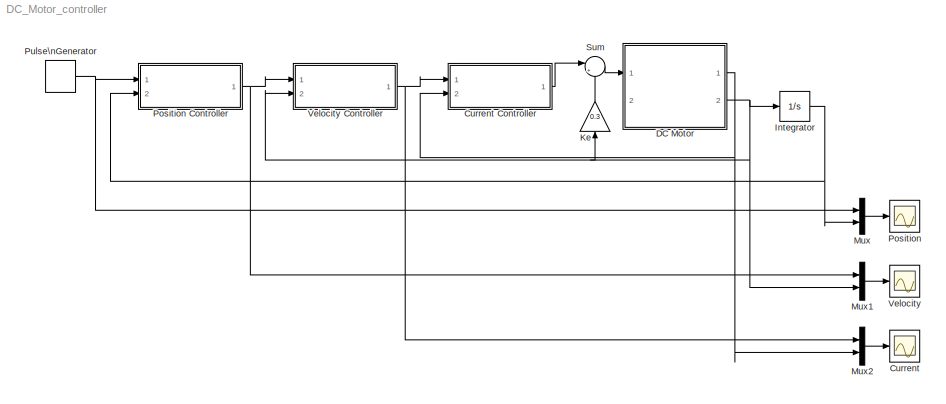
MODEL DC_Motor_controller
KIND model
BLOCK [Scope] Current
  DataFormat = StructureWithTime
  Floating = off
  NumInputPorts = 1
  Ports = [1]
  SID = 115
  SampleTime = 0
  SaveName = ScopeData2
  TimeRange = 10
  YMax = 20
  YMin = -20
  ZoomMode = yonly
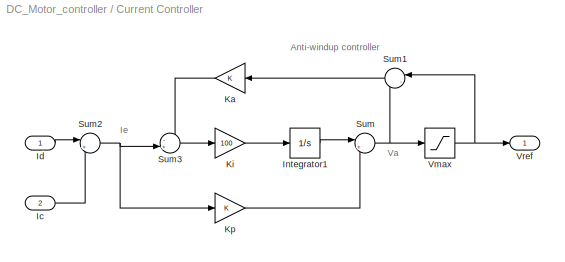
BLOCK [SubSystem] Current Controller
  FunctionWithSeparateData = off
  MaskHideContents = off
  MinAlgLoopOccurrences = off
  Opaque = off
  Ports = [2, 1]
  PropExecContextOutsideSubsystem = off
  RTWSystemCode = Auto
  RequestExecContextInheritance = off
  SID = 47
BLOCK [Inport] Current Controller/Ic
  IconDisplay = Port number
  OutDataType = fixdt(1, 16)
  OutScaling = 2^0
  Port = 2
  SID = 96
BLOCK [Inport] Current Controller/Id
  IconDisplay = Port number
  OutDataType = fixdt(1, 16)
  OutScaling = 2^0
  SID = 48
BLOCK [Integrator] Current Controller/Integrator1
  Ports = [1, 1]
  SID = 50
BLOCK [Gain] Current Controller/Ka
  OutDataType = fixdt(1, 16)
  OutDataTypeMode = Inherit via internal rule
  OutDataTypeStr = Inherit: Inherit via internal rule
  OutScaling = 2^0
  ParamDataTypeStr = Inherit: Inherit via internal rule
  ParameterDataType = fixdt(1, 16)
  ParameterDataTypeMode = Inherit via internal rule
  ParameterScaling = 2^0
  SID = 51
  SaturateOnIntegerOverflow = off
BLOCK [Gain] Current Controller/Ki
  Gain = 100
  OutDataType = fixdt(1, 16)
  OutDataTypeMode = Inherit via internal rule
  OutDataTypeStr = Inherit: Inherit via internal rule
  OutScaling = 2^0
  ParamDataTypeStr = Inherit: Inherit via internal rule
  ParameterDataType = fixdt(1, 16)
  ParameterDataTypeMode = Inherit via internal rule
  ParameterScaling = 2^0
  SID = 52
  SaturateOnIntegerOverflow = off
BLOCK [Gain] Current Controller/Kp
  OutDataType = fixdt(1, 16)
  OutDataTypeMode = Inherit via internal rule
  OutDataTypeStr = Inherit: Inherit via internal rule
  OutScaling = 2^0
  ParamDataTypeStr = Inherit: Inherit via internal rule
  ParameterDataType = fixdt(1, 16)
  ParameterDataTypeMode = Inherit via internal rule
  ParameterScaling = 2^0
  SID = 53
  SaturateOnIntegerOverflow = off
BLOCK [Sum] Current Controller/Sum
  IconShape = round
  InputSameDT = off
  Inputs = |++
  OutDataType = fixdt(1, 16)
  OutDataTypeMode = Inherit via internal rule
  OutDataTypeStr = Inherit: Inherit via internal rule
  OutScaling = 2^0
  Ports = [2, 1]
  SID = 55
  SaturateOnIntegerOverflow = off
BLOCK [Sum] Current Controller/Sum1
  IconShape = round
  InputSameDT = off
  Inputs = |-+
  OutDataType = fixdt(1, 16)
  OutDataTypeMode = Inherit via internal rule
  OutDataTypeStr = Inherit: Inherit via internal rule
  OutScaling = 2^0
  Ports = [2, 1]
  SID = 56
  SaturateOnIntegerOverflow = off
BLOCK [Sum] Current Controller/Sum2
  IconShape = round
  InputSameDT = off
  Inputs = |+-
  OutDataType = fixdt(1, 16)
  OutDataTypeMode = Inherit via internal rule
  OutDataTypeStr = Inherit: Inherit via internal rule
  OutScaling = 2^0
  Ports = [2, 1]
  SID = 97
  SaturateOnIntegerOverflow = off
BLOCK [Sum] Current Controller/Sum3
  IconShape = round
  InputSameDT = off
  Inputs = -+|
  OutDataType = fixdt(1, 16)
  OutDataTypeMode = Inherit via internal rule
  OutDataTypeStr = Inherit: Inherit via internal rule
  OutScaling = 2^0
  Ports = [2, 1]
  SID = 57
  SaturateOnIntegerOverflow = off
BLOCK [Saturate] Current Controller/Vmax
  LowerLimit = -20
  OutDataType = fixdt(1, 16)
  OutScaling = 2^0
  Ports = [1, 1]
  SID = 54
  UpperLimit = 20
BLOCK [Outport] Current Controller/Vref
  IconDisplay = Port number
  OutDataType = fixdt(1, 16)
  OutScaling = 2^0
  SID = 58
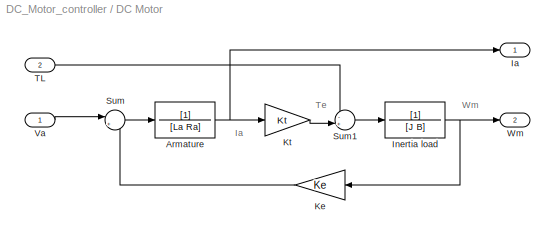
BLOCK [SubSystem] DC Motor
  FunctionWithSeparateData = off
  MaskHideContents = off
  MinAlgLoopOccurrences = off
  Opaque = off
  Ports = [2, 2]
  PropExecContextOutsideSubsystem = off
  RTWSystemCode = Auto
  RequestExecContextInheritance = off
  SID = 71
BLOCK [TransferFcn] DC Motor/Armature
  Denominator = [La Ra]
  SID = 79
BLOCK [Outport] DC Motor/Ia
  IconDisplay = Port number
  OutDataType = fixdt(1, 16)
  OutScaling = 2^0
  SID = 81
BLOCK [TransferFcn] DC Motor/Inertia load
  Denominator = [J B]
  SID = 76
BLOCK [Gain] DC Motor/Ke
  Gain = Ke
  OutDataType = fixdt(1, 16)
  OutDataTypeMode = Inherit via internal rule
  OutDataTypeStr = Inherit: Inherit via internal rule
  OutScaling = 2^0
  ParamDataTypeStr = Inherit: Inherit via internal rule
  ParameterDataType = fixdt(1, 16)
  ParameterDataTypeMode = Inherit via internal rule
  ParameterScaling = 2^0
  SID = 74
  SaturateOnIntegerOverflow = off
BLOCK [Gain] DC Motor/Kt
  Gain = Kt
  OutDataType = fixdt(1, 16)
  OutDataTypeMode = Inherit via internal rule
  OutDataTypeStr = Inherit: Inherit via internal rule
  OutScaling = 2^0
  ParamDataTypeStr = Inherit: Inherit via internal rule
  ParameterDataType = fixdt(1, 16)
  ParameterDataTypeMode = Inherit via internal rule
  ParameterScaling = 2^0
  SID = 75
  SaturateOnIntegerOverflow = off
BLOCK [Sum] DC Motor/Sum
  IconShape = round
  InputSameDT = off
  Inputs = |+-
  OutDataType = fixdt(1, 16)
  OutDataTypeMode = Inherit via internal rule
  OutDataTypeStr = Inherit: Inherit via internal rule
  OutScaling = 2^0
  Ports = [2, 1]
  SID = 77
  SaturateOnIntegerOverflow = off
BLOCK [Sum] DC Motor/Sum1
  IconShape = round
  InputSameDT = off
  Inputs = -+|
  OutDataType = fixdt(1, 16)
  OutDataTypeMode = Inherit via internal rule
  OutDataTypeStr = Inherit: Inherit via internal rule
  OutScaling = 2^0
  Ports = [2, 1]
  SID = 78
  SaturateOnIntegerOverflow = off
BLOCK [Inport] DC Motor/TL
  IconDisplay = Port number
  OutDataType = fixdt(1, 16)
  OutScaling = 2^0
  Port = 2
  SID = 73
BLOCK [Inport] DC Motor/Va
  IconDisplay = Port number
  OutDataType = fixdt(1, 16)
  OutScaling = 2^0
  SID = 72
BLOCK [Outport] DC Motor/Wm
  IconDisplay = Port number
  OutDataType = fixdt(1, 16)
  OutScaling = 2^0
  Port = 2
  SID = 102
BLOCK [Integrator] Integrator
  Ports = [1, 1]
  SID = 110
BLOCK [Gain] Ke
  Gain = 0.3
  OutDataType = fixdt(1, 16)
  OutDataTypeMode = Inherit via internal rule
  OutDataTypeStr = Inherit: Inherit via internal rule
  OutScaling = 2^0
  ParamDataTypeStr = Inherit: Inherit via internal rule
  ParameterDataType = fixdt(1, 16)
  ParameterDataTypeMode = Inherit via internal rule
  ParameterScaling = 2^0
  SID = 123
  SaturateOnIntegerOverflow = off
BLOCK [Mux] Mux
  DisplayOption = bar
  Inputs = 2
  Ports = [2, 1]
  SID = 24
BLOCK [Mux] Mux1
  DisplayOption = bar
  Inputs = 2
  Ports = [2, 1]
  SID = 112
BLOCK [Mux] Mux2
  DisplayOption = bar
  Inputs = 2
  Ports = [2, 1]
  SID = 114
BLOCK [Scope] Position
  DataFormat = StructureWithTime
  Floating = off
  NumInputPorts = 1
  Ports = [1]
  SID = 6
  SampleTime = 0
  TimeRange = 10
  YMax = 150
  YMin = 0
  ZoomMode = yonly
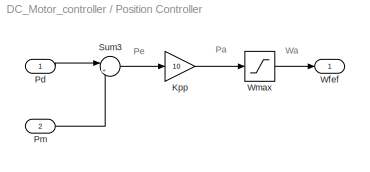
BLOCK [SubSystem] Position Controller
  FunctionWithSeparateData = off
  MaskHideContents = off
  MinAlgLoopOccurrences = off
  Opaque = off
  Ports = [2, 1]
  PropExecContextOutsideSubsystem = off
  RTWSystemCode = Auto
  RequestExecContextInheritance = off
  SID = 103
BLOCK [Gain] Position Controller/Kpp
  Gain = 10
  OutDataType = fixdt(1, 16)
  OutDataTypeMode = Inherit via internal rule
  OutDataTypeStr = Inherit: Inherit via internal rule
  OutScaling = 2^0
  ParamDataTypeStr = Inherit: Inherit via internal rule
  ParameterDataType = fixdt(1, 16)
  ParameterDataTypeMode = Inherit via internal rule
  ParameterScaling = 2^0
  SID = 107
  SaturateOnIntegerOverflow = off
BLOCK [Inport] Position Controller/Pd
  IconDisplay = Port number
  OutDataType = fixdt(1, 16)
  OutScaling = 2^0
  SID = 104
BLOCK [Inport] Position Controller/Pm
  IconDisplay = Port number
  OutDataType = fixdt(1, 16)
  OutScaling = 2^0
  Port = 2
  SID = 106
BLOCK [Sum] Position Controller/Sum3
  IconShape = round
  InputSameDT = off
  Inputs = |+-
  OutDataType = fixdt(1, 16)
  OutDataTypeMode = Inherit via internal rule
  OutDataTypeStr = Inherit: Inherit via internal rule
  OutScaling = 2^0
  Ports = [2, 1]
  SID = 108
  SaturateOnIntegerOverflow = off
BLOCK [Outport] Position Controller/Wfef
  IconDisplay = Port number
  OutDataType = fixdt(1, 16)
  OutScaling = 2^0
  SID = 105
BLOCK [Saturate] Position Controller/Wmax
  LowerLimit = -100
  OutDataType = fixdt(1, 16)
  OutScaling = 2^0
  Ports = [1, 1]
  SID = 109
  UpperLimit = 100
BLOCK [DiscretePulseGenerator] Pulse\nGenerator
  Amplitude = 100
  Period = 10
  PhaseDelay = 1
  Ports = [0, 1]
  PulseType = Time based
  PulseWidth = 50
  SID = 26
  SampleTime = 1
BLOCK [Sum] Sum
  IconShape = round
  InputSameDT = off
  Inputs = |++
  OutDataType = fixdt(1, 16)
  OutDataTypeMode = Inherit via internal rule
  OutDataTypeStr = Inherit: Inherit via internal rule
  OutScaling = 2^0
  Ports = [2, 1]
  SID = 122
  SaturateOnIntegerOverflow = off
BLOCK [Scope] Velocity
  DataFormat = StructureWithTime
  Floating = off
  NumInputPorts = 1
  Ports = [1]
  SID = 113
  SampleTime = 0
  SaveName = ScopeData1
  TimeRange = 10
  YMax = 100
  YMin = -100
  ZoomMode = yonly
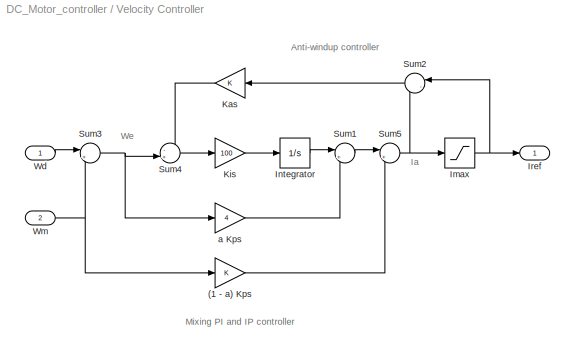
BLOCK [SubSystem] Velocity Controller
  FunctionWithSeparateData = off
  MaskHideContents = off
  MinAlgLoopOccurrences = off
  Opaque = off
  Ports = [2, 1]
  PropExecContextOutsideSubsystem = off
  RTWSystemCode = Auto
  RequestExecContextInheritance = off
  SID = 82
BLOCK [Gain] Velocity Controller/(1 - a) Kps
  OutDataType = fixdt(1, 16)
  OutDataTypeMode = Inherit via internal rule
  OutDataTypeStr = Inherit: Inherit via internal rule
  OutScaling = 2^0
  ParamDataTypeStr = Inherit: Inherit via internal rule
  ParameterDataType = fixdt(1, 16)
  ParameterDataTypeMode = Inherit via internal rule
  ParameterScaling = 2^0
  SID = 95
  SaturateOnIntegerOverflow = off
BLOCK [Saturate] Velocity Controller/Imax
  LowerLimit = -20
  OutDataType = fixdt(1, 16)
  OutScaling = 2^0
  Ports = [1, 1]
  SID = 101
  UpperLimit = 20
BLOCK [Integrator] Velocity Controller/Integrator
  Ports = [1, 1]
  SID = 84
BLOCK [Outport] Velocity Controller/Iref
  IconDisplay = Port number
  OutDataType = fixdt(1, 16)
  OutScaling = 2^0
  SID = 92
BLOCK [Gain] Velocity Controller/Kas
  OutDataType = fixdt(1, 16)
  OutDataTypeMode = Inherit via internal rule
  OutDataTypeStr = Inherit: Inherit via internal rule
  OutScaling = 2^0
  ParamDataTypeStr = Inherit: Inherit via internal rule
  ParameterDataType = fixdt(1, 16)
  ParameterDataTypeMode = Inherit via internal rule
  ParameterScaling = 2^0
  SID = 116
  SaturateOnIntegerOverflow = off
BLOCK [Gain] Velocity Controller/Kis
  Gain = 100
  OutDataType = fixdt(1, 16)
  OutDataTypeMode = Inherit via internal rule
  OutDataTypeStr = Inherit: Inherit via internal rule
  OutScaling = 2^0
  ParamDataTypeStr = Inherit: Inherit via internal rule
  ParameterDataType = fixdt(1, 16)
  ParameterDataTypeMode = Inherit via internal rule
  ParameterScaling = 2^0
  SID = 86
  SaturateOnIntegerOverflow = off
BLOCK [Sum] Velocity Controller/Sum1
  IconShape = round
  InputSameDT = off
  Inputs = |++
  OutDataType = fixdt(1, 16)
  OutDataTypeMode = Inherit via internal rule
  OutDataTypeStr = Inherit: Inherit via internal rule
  OutScaling = 2^0
  Ports = [2, 1]
  SID = 120
  SaturateOnIntegerOverflow = off
BLOCK [Sum] Velocity Controller/Sum2
  IconShape = round
  InputSameDT = off
  Inputs = |-+
  OutDataType = fixdt(1, 16)
  OutDataTypeMode = Inherit via internal rule
  OutDataTypeStr = Inherit: Inherit via internal rule
  OutScaling = 2^0
  Ports = [2, 1]
  SID = 117
  SaturateOnIntegerOverflow = off
BLOCK [Sum] Velocity Controller/Sum3
  IconShape = round
  InputSameDT = off
  Inputs = |+-
  OutDataType = fixdt(1, 16)
  OutDataTypeMode = Inherit via internal rule
  OutDataTypeStr = Inherit: Inherit via internal rule
  OutScaling = 2^0
  Ports = [2, 1]
  SID = 91
  SaturateOnIntegerOverflow = off
BLOCK [Sum] Velocity Controller/Sum4
  IconShape = round
  InputSameDT = off
  Inputs = -+|
  OutDataType = fixdt(1, 16)
  OutDataTypeMode = Inherit via internal rule
  OutDataTypeStr = Inherit: Inherit via internal rule
  OutScaling = 2^0
  Ports = [2, 1]
  SID = 118
  SaturateOnIntegerOverflow = off
BLOCK [Sum] Velocity Controller/Sum5
  IconShape = round
  InputSameDT = off
  Inputs = |+-
  OutDataType = fixdt(1, 16)
  OutDataTypeMode = Inherit via internal rule
  OutDataTypeStr = Inherit: Inherit via internal rule
  OutScaling = 2^0
  Ports = [2, 1]
  SID = 121
  SaturateOnIntegerOverflow = off
BLOCK [Inport] Velocity Controller/Wd
  IconDisplay = Port number
  OutDataType = fixdt(1, 16)
  OutScaling = 2^0
  SID = 83
BLOCK [Inport] Velocity Controller/Wm
  IconDisplay = Port number
  OutDataType = fixdt(1, 16)
  OutScaling = 2^0
  Port = 2
  SID = 93
BLOCK [Gain] Velocity Controller/a Kps
  Gain = 4
  OutDataType = fixdt(1, 16)
  OutDataTypeMode = Inherit via internal rule
  OutDataTypeStr = Inherit: Inherit via internal rule
  OutScaling = 2^0
  ParamDataTypeStr = Inherit: Inherit via internal rule
  ParameterDataType = fixdt(1, 16)
  ParameterDataTypeMode = Inherit via internal rule
  ParameterScaling = 2^0
  SID = 87
  SaturateOnIntegerOverflow = off
ANNOTATION Current Controller: Anti-windup controller
ANNOTATION Current Controller: Ie
ANNOTATION Current Controller: Va
ANNOTATION DC Motor: Ia
ANNOTATION DC Motor: Te
ANNOTATION DC Motor: Wm
ANNOTATION Position Controller: Pa
ANNOTATION Position Controller: Pe
ANNOTATION Position Controller: Wa
ANNOTATION Velocity Controller: Anti-windup controller
ANNOTATION Velocity Controller: Ia
ANNOTATION Velocity Controller: Mixing PI and IP controller
ANNOTATION Velocity Controller: We
LINE Current Controller/Ic:1 -> Current Controller/Sum2:2
LINE Current Controller/Id:1 -> Current Controller/Sum2:1
LINE Current Controller/Integrator1:1 -> Current Controller/Sum:1
LINE Current Controller/Ka:1 -> Current Controller/Sum3:1
LINE Current Controller/Ki:1 -> Current Controller/Integrator1:1
LINE Current Controller/Kp:1 -> Current Controller/Sum:2
LINE Current Controller/Sum1:1 -> Current Controller/Ka:1
NET Current Controller/Sum2:1 -> Current Controller/Kp:1, Current Controller/Sum3:2
LINE Current Controller/Sum3:1 -> Current Controller/Ki:1
NET Current Controller/Sum:1 -> Current Controller/Sum1:2, Current Controller/Vmax:1
NET Current Controller/Vmax:1 -> Current Controller/Sum1:1, Current Controller/Vref:1
LINE Current Controller:1 -> Sum:1
NET DC Motor/Armature:1 -> DC Motor/Ia:1, DC Motor/Kt:1
NET DC Motor/Inertia load:1 -> DC Motor/Ke:1, DC Motor/Wm:1
LINE DC Motor/Ke:1 -> DC Motor/Sum:2
LINE DC Motor/Kt:1 -> DC Motor/Sum1:2
LINE DC Motor/Sum1:1 -> DC Motor/Inertia load:1
LINE DC Motor/Sum:1 -> DC Motor/Armature:1
LINE DC Motor/TL:1 -> DC Motor/Sum1:1
LINE DC Motor/Va:1 -> DC Motor/Sum:1
NET DC Motor:1 -> Current Controller:2, Mux2:2
NET DC Motor:2 -> Integrator:1, Ke:1, Mux1:2, Velocity Controller:2
NET Integrator:1 -> Mux:2, Position Controller:2
LINE Ke:1 -> Sum:2
LINE Mux1:1 -> Velocity:1
LINE Mux2:1 -> Current:1
LINE Mux:1 -> Position:1
LINE Position Controller/Kpp:1 -> Position Controller/Wmax:1
LINE Position Controller/Pd:1 -> Position Controller/Sum3:1
LINE Position Controller/Pm:1 -> Position Controller/Sum3:2
LINE Position Controller/Sum3:1 -> Position Controller/Kpp:1
LINE Position Controller/Wmax:1 -> Position Controller/Wfef:1
NET Position Controller:1 -> Mux1:1, Velocity Controller:1
NET Pulse\nGenerator:1 -> Mux:1, Position Controller:1
LINE Sum:1 -> DC Motor:1
LINE Velocity Controller/(1 - a) Kps:1 -> Velocity Controller/Sum5:2
NET Velocity Controller/Imax:1 -> Velocity Controller/Iref:1, Velocity Controller/Sum2:1
LINE Velocity Controller/Integrator:1 -> Velocity Controller/Sum1:1
LINE Velocity Controller/Kas:1 -> Velocity Controller/Sum4:1
LINE Velocity Controller/Kis:1 -> Velocity Controller/Integrator:1
LINE Velocity Controller/Sum1:1 -> Velocity Controller/Sum5:1
LINE Velocity Controller/Sum2:1 -> Velocity Controller/Kas:1
NET Velocity Controller/Sum3:1 -> Velocity Controller/Sum4:2, Velocity Controller/a Kps:1
LINE Velocity Controller/Sum4:1 -> Velocity Controller/Kis:1
NET Velocity Controller/Sum5:1 -> Velocity Controller/Imax:1, Velocity Controller/Sum2:2
LINE Velocity Controller/Wd:1 -> Velocity Controller/Sum3:1
NET Velocity Controller/Wm:1 -> Velocity Controller/(1 - a) Kps:1, Velocity Controller/Sum3:2
LINE Velocity Controller/a Kps:1 -> Velocity Controller/Sum1:2
NET Velocity Controller:1 -> Current Controller:1, Mux2:1
note: NET lines group one-source signal fan-out (src -> all destinations, sorted); 1:1 wires keep LINE
